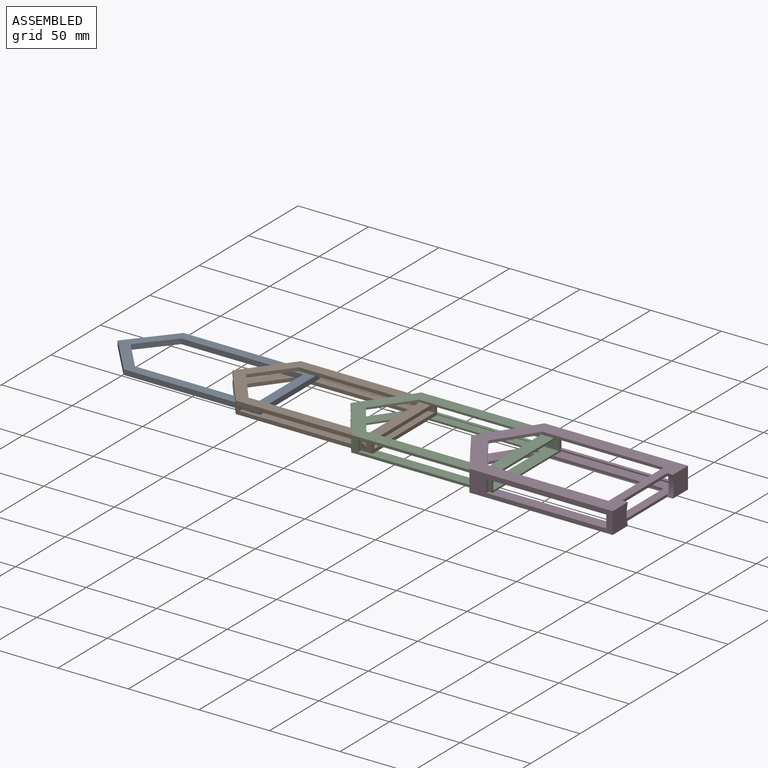
[diagram: assembled view]
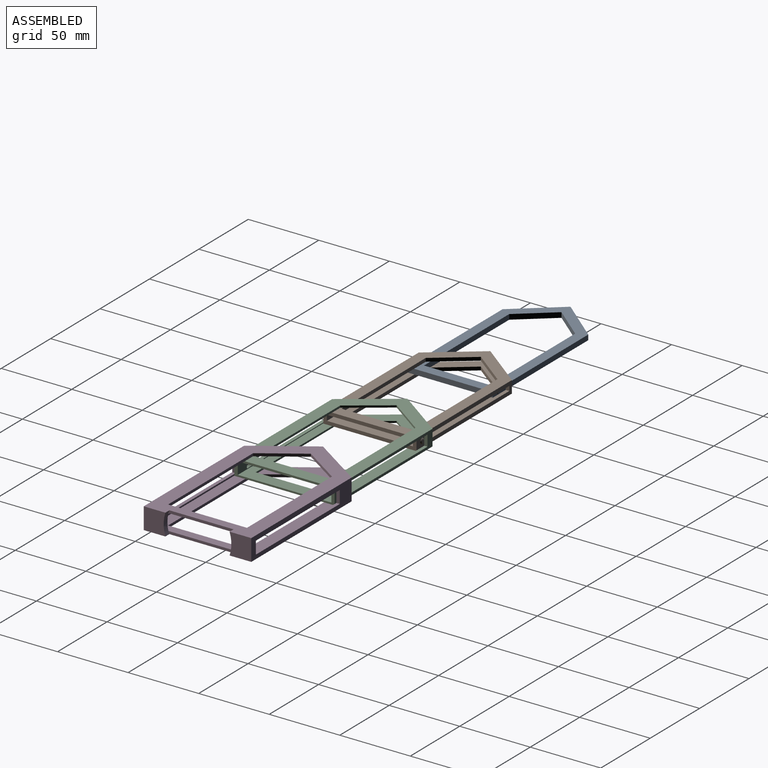
[diagram: assembled view, second angle]
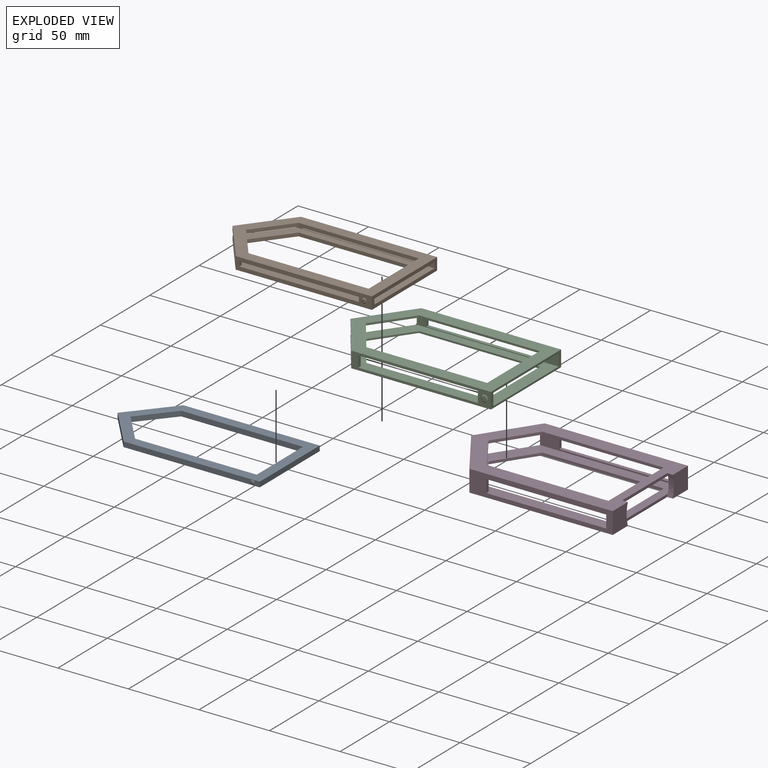
[diagram: exploded view]
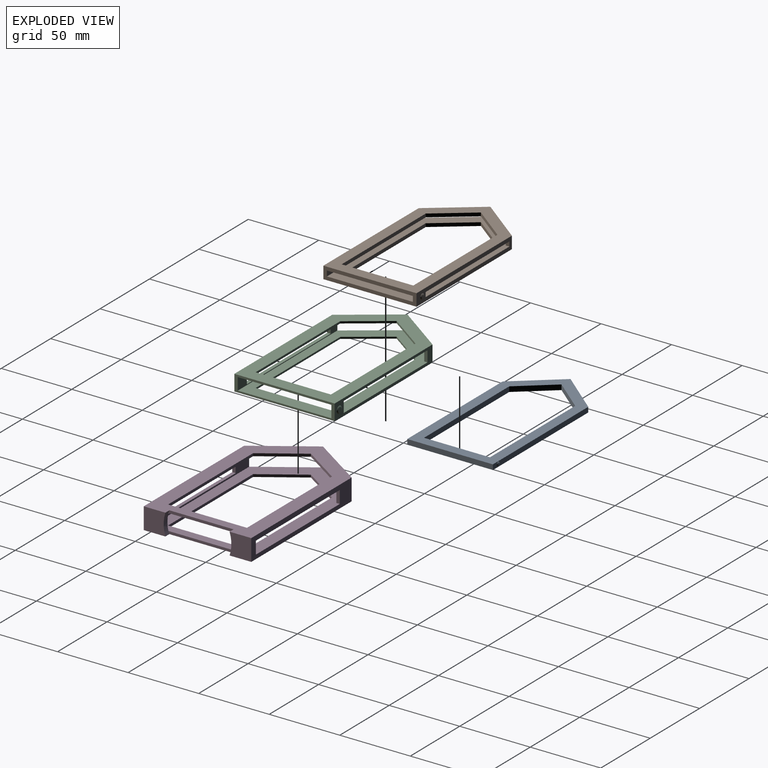
[diagram: exploded view, second angle]
ASSEMBLY  parts=4 mates=3
PART A: 16 faces, bbox 121.9x61.8x3.6 mm
  f0: plane 60.74x3.61mm, normal (1,0,0), area 219.3mm2, adj f1,f9,f10,f11
  f1: plane 96.52x3.61mm, normal (0,1,0), area 341.4mm2, adj f0,f2,f10,f11,f15
  f2: plane 30.37x25.4mm, normal (-0.77,0.64,0), area 142.9mm2, adj f1,f3,f10,f11
  f3: plane 30.37x25.4mm, normal (-0.77,-0.64,0), area 142.9mm2, adj f2,f9,f10,f11
  f4: plane 23.37x19.55mm, normal (0.77,-0.64,0), area 110mm2, adj f5,f8,f10,f11
  f5: plane 86.25x3.61mm, normal (0,-1,0), area 311.4mm2, adj f4,f6,f10,f11
  f6: plane 46.74x3.61mm, normal (-1,0,0), area 168.7mm2, adj f5,f7,f10,f11
  f7: plane 86.25x3.61mm, normal (0,1,0), area 311.4mm2, adj f6,f8,f10,f11
  f8: plane 23.37x19.55mm, normal (0.77,0.64,0), area 110mm2, adj f4,f7,f10,f11
  f9: plane 96.52x3.61mm, normal (0,-1,0), area 341.4mm2, adj f0,f3,f10,f11,f13
  f10: plane 121.92x60.74mm, normal (0,0,1), area 2146mm2, adj f0,f1,f2,f3,f4,f5,f6,f7
  f11: plane 121.92x60.74mm, normal (0,0,-1), area 2146mm2, adj f0,f1,f2,f3,f4,f5,f6,f7
  f12: plane 0.97x0.97mm, normal (0,-1,0), area 0.7mm2, adj f13
  f13: torus R=0.48mm, axis (0,1,0), area 7.6mm2, adj f9,f12
  f14: plane 0.97x0.97mm, normal (0,1,0), area 0.7mm2, adj f15
  f15: torus R=0.48mm, axis (0,-1,0), area 7.6mm2, adj f1,f14
PART B: 33 faces, bbox 121.9x67.1x8.6 mm
  f0: plane 96.52x8.64mm, normal (0,1,0), area 546.2mm2, adj f9,f10,f17,f18,f25,f26,f27,f28
  f1: plane 96.52x8.64mm, normal (0,-1,0), area 546.2mm2, adj f9,f11,f17,f18,f21,f22,f23,f24
  f2: plane 98.5x3.81mm, normal (0,-1,0), area 99.3mm2, adj f9,f10,f19,f20,f25,f26,f27,f28
  f3: plane 98.44x3.81mm, normal (0,1,0), area 99.1mm2, adj f9,f11,f19,f20,f21,f22,f23,f24
  f4: plane 85.15x2.42mm, normal (0,-1,0), area 205.7mm2, adj f5,f12,f17,f19
  f5: plane 50.8x2.42mm, normal (-1,0,0), area 122.7mm2, adj f4,f6,f17,f19
  f6: plane 85.15x2.42mm, normal (0,1,0), area 205.7mm2, adj f5,f16,f17,f19
  f7: plane 25.4x19.54mm, normal (0.79,-0.61,0), area 77.2mm2, adj f8,f13,f18,f20
  f8: plane 25.4x19.54mm, normal (0.79,0.61,0), area 77.2mm2, adj f7,f15,f18,f20
  f9: plane 66.04x8.64mm, normal (1,0,0), area 338.1mm2, adj f0,f1,f2,f3,f17,f18,f19,f20
  f10: plane 33.02x25.4mm, normal (-0.79,0.61,0), area 213.4mm2, adj f0,f2,f11,f17,f18,f19,f20
  f11: plane 33.02x25.4mm, normal (-0.79,-0.61,0), area 213.1mm2, adj f1,f3,f10,f17,f18,f19,f20
  f12: plane 25.4x19.54mm, normal (0.79,-0.61,0), area 77.4mm2, adj f4,f16,f17,f19
  f13: plane 85.15x2.41mm, normal (0,-1,0), area 205.2mm2, adj f7,f14,f18,f20
  f14: plane 50.8x2.41mm, normal (-1,0,0), area 122.4mm2, adj f13,f15,f18,f20
  f15: plane 85.15x2.41mm, normal (0,1,0), area 205.2mm2, adj f8,f14,f18,f20
  f16: plane 25.4x19.54mm, normal (0.79,0.61,0), area 77.4mm2, adj f6,f12,f17,f19
  f17: plane 121.92x66.04mm, normal (0,0,1), area 2391.1mm2, adj f0,f1,f4,f5,f6,f9,f10,f11
  f18: plane 121.92x66.04mm, normal (0,0,-1), area 2391.1mm2, adj f0,f1,f7,f8,f9,f10,f11,f13
  f19: plane 121.92x60.96mm, normal (0,0,-1), area 1895.8mm2, adj f2,f3,f4,f5,f6,f9,f10,f11
  f20: plane 121.92x60.96mm, normal (0,0,1), area 1895.8mm2, adj f2,f3,f7,f8,f9,f10,f11,f13
  f21: plane 3.25x2.5mm, normal (-1,0,0), area 8.1mm2, adj f1,f3,f22,f24
  f22: plane 84.79x2.5mm, normal (0,0,1), area 212.1mm2, adj f1,f3,f21,f23
  f23: plane 3.25x2.5mm, normal (1,0,0), area 8.1mm2, adj f1,f3,f22,f24
  f24: plane 84.79x2.5mm, normal (0,0,-1), area 212.1mm2, adj f1,f3,f21,f23
  f25: plane 84.79x2.58mm, normal (0,0,-1), area 218.6mm2, adj f0,f2,f26,f28
  f26: plane 3.25x2.58mm, normal (1,0,0), area 8.4mm2, adj f0,f2,f25,f27
  f27: plane 84.79x2.58mm, normal (0,0,1), area 218.6mm2, adj f0,f2,f26,f28
  f28: plane 3.25x2.58mm, normal (-1,0,0), area 8.4mm2, adj f0,f2,f25,f27
  f29: plane 1.78x1.78mm, normal (0,-1,0), area 2.5mm2, adj f30
  f30: torus R=0.89mm, axis (0,1,0), area 10.6mm2, adj f1,f29
  f31: plane 1.78x1.78mm, normal (0,1,0), area 2.5mm2, adj f32
  f32: torus R=0.89mm, axis (0,-1,0), area 10.6mm2, adj f0,f31
PART C: 33 faces, bbox 124.5x72.1x11.3 mm
  f0: plane 99.06x11.3mm, normal (0,1,0), area 440.4mm2, adj f9,f10,f17,f18,f25,f26,f27,f28
  f1: plane 99.06x11.3mm, normal (0,-1,0), area 440.4mm2, adj f9,f11,f17,f18,f21,f22,f23,f24
  f2: plane 100.74x8.64mm, normal (0,-1,0), area 211.3mm2, adj f9,f10,f19,f20,f25,f26,f27,f28
  f3: plane 100.82x8.64mm, normal (0,1,0), area 212mm2, adj f9,f11,f19,f20,f21,f22,f23,f24
  f4: plane 85.6x1.43mm, normal (0,-1,0), area 122.7mm2, adj f5,f12,f17,f19
  f5: plane 53.34x1.43mm, normal (-1,0,0), area 76.5mm2, adj f4,f6,f17,f19
  f6: plane 85.6x1.43mm, normal (0,1,0), area 122.7mm2, adj f5,f16,f17,f19
  f7: plane 26.67x19.05mm, normal (0.81,-0.58,0), area 40.3mm2, adj f8,f13,f18,f20
  f8: plane 26.67x19.05mm, normal (0.81,0.58,0), area 40.3mm2, adj f7,f15,f18,f20
  f9: plane 71.12x11.3mm, normal (1,0,0), area 231mm2, adj f0,f1,f2,f3,f17,f18,f19,f20
  f10: plane 35.56x25.4mm, normal (-0.81,0.58,0), area 141.3mm2, adj f0,f2,f11,f17,f18,f19,f20
  f11: plane 35.56x25.4mm, normal (-0.81,-0.58,0), area 142.5mm2, adj f1,f3,f10,f17,f18,f19,f20
  f12: plane 26.67x19.05mm, normal (0.81,-0.58,0), area 47mm2, adj f4,f16,f17,f19
  f13: plane 85.6x1.23mm, normal (0,-1,0), area 105.3mm2, adj f7,f14,f18,f20
  f14: plane 53.34x1.23mm, normal (-1,0,0), area 65.6mm2, adj f13,f15,f18,f20
  f15: plane 85.6x1.23mm, normal (0,1,0), area 105.3mm2, adj f8,f14,f18,f20
  f16: plane 26.67x19.05mm, normal (0.81,0.58,0), area 47mm2, adj f6,f12,f17,f19
  f17: plane 124.46x71.12mm, normal (0,0,1), area 2874.7mm2, adj f0,f1,f4,f5,f6,f9,f10,f11
  f18: plane 124.46x71.12mm, normal (0,0,-1), area 2874.7mm2, adj f0,f1,f7,f8,f9,f10,f11,f13
  f19: plane 124.46x66.31mm, normal (0,0,-1), area 2394.1mm2, adj f2,f3,f4,f5,f6,f9,f10,f11
  f20: plane 124.46x66.31mm, normal (0,0,1), area 2394.1mm2, adj f2,f3,f7,f8,f9,f10,f11,f13
  f21: plane 7.77x2.46mm, normal (-1,0,0), area 19.1mm2, adj f1,f3,f22,f24
  f22: plane 84.79x2.46mm, normal (0,0,1), area 208.7mm2, adj f1,f3,f21,f23
  f23: plane 7.77x2.46mm, normal (1,0,0), area 19.1mm2, adj f1,f3,f22,f24
  f24: plane 84.79x2.46mm, normal (0,0,-1), area 208.7mm2, adj f1,f3,f21,f23
  f25: plane 84.79x2.35mm, normal (0,0,-1), area 199.2mm2, adj f0,f2,f26,f28
  f26: plane 7.77x2.35mm, normal (1,0,0), area 18.2mm2, adj f0,f2,f25,f27
  f27: plane 84.79x2.35mm, normal (0,0,1), area 199.2mm2, adj f0,f2,f26,f28
  f28: plane 7.77x2.35mm, normal (-1,0,0), area 18.2mm2, adj f0,f2,f25,f27
  f29: plane 3.05x3.05mm, normal (0,-1,0), area 7.3mm2, adj f30
  f30: torus R=1.52mm, axis (0,1,0), area 15.3mm2, adj f1,f29
  f31: plane 3.05x3.05mm, normal (0,1,0), area 7.3mm2, adj f32
  f32: torus R=1.52mm, axis (0,-1,0), area 15.3mm2, adj f0,f31
PART D: 36 faces, bbox 127x76.2x15.2 mm
  f0: plane 15.34x15.24mm, normal (1,0,0), area 221.1mm2, adj f1,f3,f20,f33
  f1: plane 127x76.2mm, normal (0,0,1), area 3201.3mm2, adj f0,f3,f4,f7,f8,f9,f12,f13
  f2: plane 12.39x11.5mm, normal (-1,0,0), area 137mm2, adj f5,f21,f22,f33
  f3: plane 101.6x15.24mm, normal (0,1,0), area 788.4mm2, adj f0,f1,f13,f20,f28,f29,f30,f31
  f4: plane 101.6x15.24mm, normal (0,-1,0), area 788.4mm2, adj f1,f12,f14,f20,f24,f25,f26,f27
  f5: plane 99.37x11.5mm, normal (0,-1,0), area 382.8mm2, adj f2,f13,f21,f22,f28,f29,f30,f31
  f6: plane 99.36x11.5mm, normal (0,1,0), area 382.7mm2, adj f14,f21,f22,f23,f24,f25,f26,f27
  f7: plane 86x1.93mm, normal (0,-1,0), area 165.6mm2, adj f1,f8,f15,f21
  f8: plane 55.88x1.93mm, normal (-1,0,0), area 107.6mm2, adj f1,f7,f9,f21
  f9: plane 86x1.93mm, normal (0,1,0), area 165.6mm2, adj f1,f8,f19,f21
  f10: plane 27.94x18.63mm, normal (0.83,-0.55,0), area 60.9mm2, adj f11,f16,f20,f22
  f11: plane 27.94x18.63mm, normal (0.83,0.55,0), area 60.9mm2, adj f10,f18,f20,f22
  f12: plane 15.34x15.24mm, normal (1,0,0), area 221.1mm2, adj f1,f4,f20,f34
  f13: plane 38.1x25.4mm, normal (-0.83,0.55,0), area 204.7mm2, adj f1,f3,f5,f14,f20,f21,f22
  f14: plane 38.1x25.4mm, normal (-0.83,-0.55,0), area 204.5mm2, adj f1,f4,f6,f13,f20,f21,f22
  f15: plane 27.94x18.63mm, normal (0.83,-0.55,0), area 64.7mm2, adj f1,f7,f19,f21
  f16: plane 86x1.81mm, normal (0,-1,0), area 156mm2, adj f10,f17,f20,f22
  f17: plane 55.88x1.81mm, normal (-1,0,0), area 101.4mm2, adj f16,f18,f20,f22
  f18: plane 86x1.81mm, normal (0,1,0), area 156mm2, adj f11,f17,f20,f22
  f19: plane 27.94x18.63mm, normal (0.83,0.55,0), area 64.7mm2, adj f1,f9,f15,f21
  f20: plane 127x76.2mm, normal (0,0,-1), area 3201.3mm2, adj f0,f3,f4,f10,f11,f12,f13,f14
  f21: plane 123.16x71.37mm, normal (0,0,-1), area 2607.6mm2, adj f2,f5,f6,f7,f8,f9,f13,f14
  f22: plane 123.16x71.37mm, normal (0,0,1), area 2607.6mm2, adj f2,f5,f6,f10,f11,f13,f14,f16
  f23: plane 12.41x11.5mm, normal (-1,0,0), area 137.1mm2, adj f6,f21,f22,f34
  f24: plane 8.94x2.41mm, normal (-1,0,0), area 21.5mm2, adj f4,f6,f25,f27
  f25: plane 85.01x2.41mm, normal (0,0,1), area 204.5mm2, adj f4,f6,f24,f26
  f26: plane 8.94x2.41mm, normal (1,0,0), area 21.5mm2, adj f4,f6,f25,f27
  f27: plane 85.01x2.41mm, normal (0,0,-1), area 204.5mm2, adj f4,f6,f24,f26
  f28: plane 85.01x2.42mm, normal (0,0,-1), area 205.7mm2, adj f3,f5,f29,f31
  f29: plane 8.94x2.42mm, normal (1,0,0), area 21.6mm2, adj f3,f5,f28,f30
  f30: plane 85.01x2.42mm, normal (0,0,1), area 205.7mm2, adj f3,f5,f29,f31
  f31: plane 8.94x2.42mm, normal (-1,0,0), area 21.6mm2, adj f3,f5,f28,f30
  f32: plane 46.63x1.93mm, normal (1,0,0), area 88.8mm2, adj f1,f21,f33,f34
  f33: cylinder r=24mm len=15.24mm, axis (1,0,0), area 60.2mm2, adj f0,f1,f2,f20,f21,f22,f32,f35
  f34: cylinder r=24mm len=15.24mm, axis (1,0,0), area 60.2mm2, adj f1,f12,f20,f21,f22,f23,f32,f35
  f35: plane 46.57x1.81mm, normal (1,0,0), area 83.6mm2, adj f20,f22,f33,f34
PLACE A rot(axis=(0.99,0.02,0.15),0deg) t=(-160.11,-59.32,12)mm
PLACE B rot(axis=(0.99,0.02,0.15),0deg) t=(-78.84,-59.2,9.59)mm
PLACE C rot(axis=(0.99,0.02,0.15),0deg) t=(7.42,-59.35,8.36)mm
PLACE D rot(axis=(0.99,0.02,0.15),0deg) t=(95.5,-59.34,6.55)mm
MATE planar C.f20 <-> B.f18  axis (0,0,1) through (21.99,-59.2,9.59)mm
MATE planar D.f22 <-> C.f18  axis (0,0,1) through (103.06,-59.35,8.36)mm
MATE planar B.f20 <-> A.f11  axis (0,0,1) through (-63.4,-59.32,12)mm
